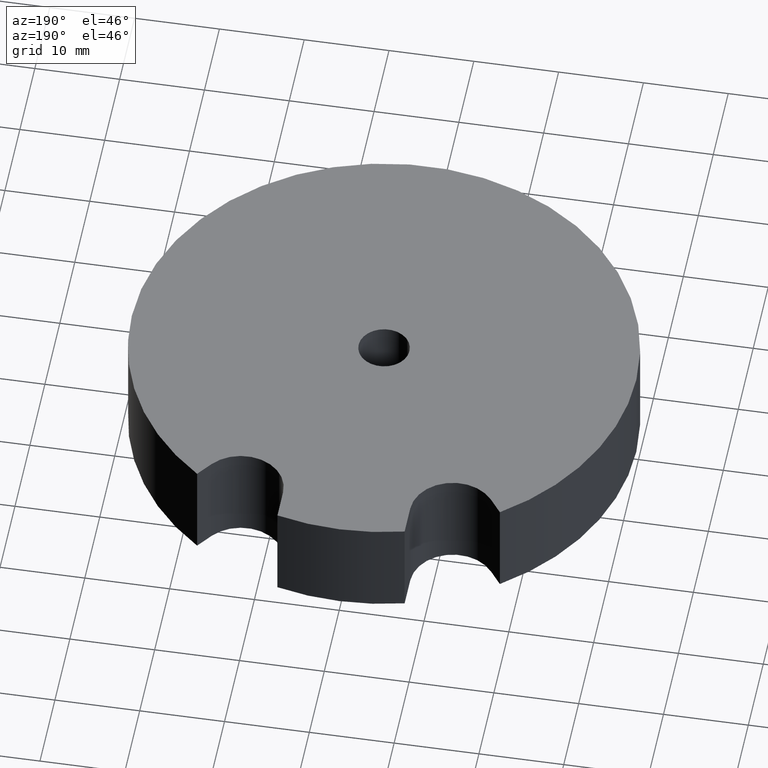
[diagram: clean part render]
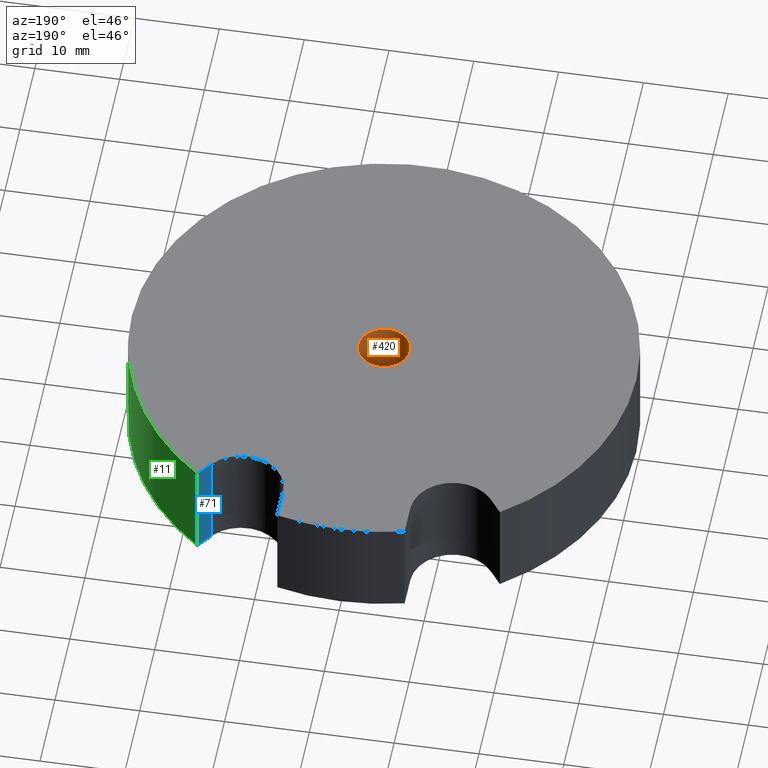
[diagram: same view with three faces highlighted in distinct colors, each labeled with its STEP entity id]
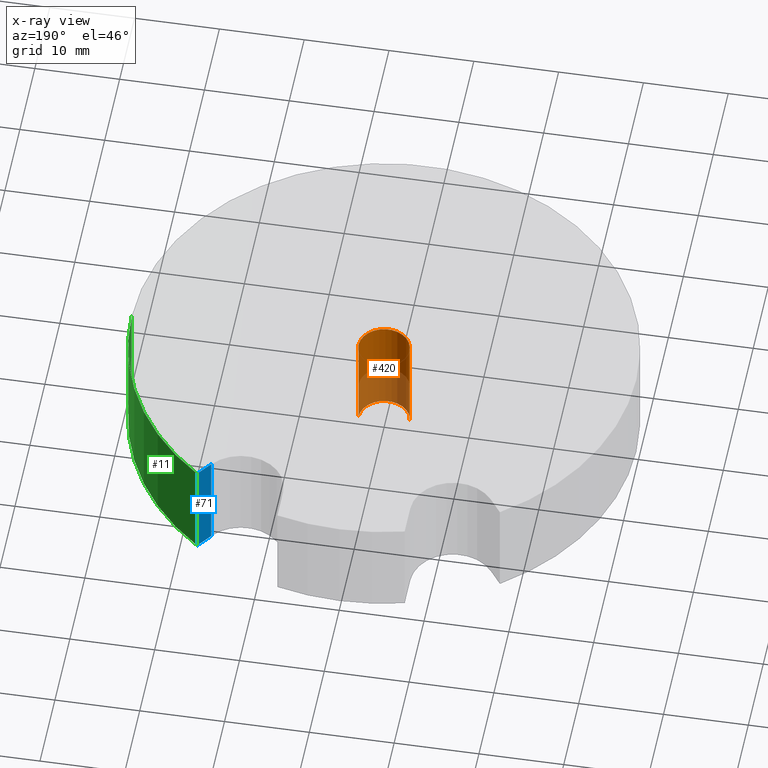
[diagram: x-ray of the same camera — body ghosted, the three highlighted faces saturated]
A machine part, auxiliary view with three faces highlighted in distinct colors.
The next image is the same camera in x-ray (body ghosted, the three faces saturated) — at least one of them is partly hidden behind the body in this view.
Their STEP definitions:

[orange] entity #420 — the highlighted cylindrical surface (edge-blend (fillet) strip) has radius 3 mm, axis along (-0, -0, -1).
#15 = CARTESIAN_POINT ( 'NONE',  ( -3.000000000000000400, 0.0000000000000000000, -6.000000000000000000 ) ) ;
#20 = DIRECTION ( 'NONE',  ( -1.000000000000000000, 0.0000000000000000000, 0.0000000000000000000 ) ) ;
#35 = CARTESIAN_POINT ( 'NONE',  ( -3.000000000000000400, 0.0000000000000000000, 6.000000000000000000 ) ) ;
#51 = CARTESIAN_POINT ( 'NONE',  ( 0.0000000000000000000, 0.0000000000000000000, 6.000000000000000000 ) ) ;
#55 = CARTESIAN_POINT ( 'NONE',  ( 3.000000000000000400, 3.673940397442060400E-016, 6.000000000000000000 ) ) ;
#66 = DIRECTION ( 'NONE',  ( -0.0000000000000000000, -0.0000000000000000000, -1.000000000000000000 ) ) ;
#105 = VECTOR ( 'NONE', #141, 1000.000000000000000 ) ;
#130 = CYLINDRICAL_SURFACE ( 'NONE', #234, 3.000000000000000400 ) ;
#136 = FACE_OUTER_BOUND ( 'NONE', #291, .T. ) ;
#141 = DIRECTION ( 'NONE',  ( -0.0000000000000000000, -0.0000000000000000000, -1.000000000000000000 ) ) ;
#147 = VECTOR ( 'NONE', #66, 1000.000000000000000 ) ;
#154 = DIRECTION ( 'NONE',  ( 1.000000000000000000, 0.0000000000000000000, 0.0000000000000000000 ) ) ;
#157 = LINE ( 'NONE', #55, #147 ) ;
#163 = CIRCLE ( 'NONE', #292, 3.000000000000000400 ) ;
#166 = CARTESIAN_POINT ( 'NONE',  ( 3.000000000000000400, 3.673940397442060400E-016, 6.000000000000000000 ) ) ;
#172 = CARTESIAN_POINT ( 'NONE',  ( 0.0000000000000000000, 0.0000000000000000000, -6.000000000000000000 ) ) ;
#177 = ORIENTED_EDGE ( 'NONE', *, *, #409, .T. ) ;
#184 = LINE ( 'NONE', #207, #105 ) ;
#185 = CIRCLE ( 'NONE', #266, 3.000000000000000400 ) ;
#207 = CARTESIAN_POINT ( 'NONE',  ( -3.000000000000000400, 0.0000000000000000000, 6.000000000000000000 ) ) ;
#234 = AXIS2_PLACEMENT_3D ( 'NONE', #410, #342, #20 ) ;
#246 = ORIENTED_EDGE ( 'NONE', *, *, #407, .T. ) ;
#260 = DIRECTION ( 'NONE',  ( 0.0000000000000000000, 0.0000000000000000000, 1.000000000000000000 ) ) ;
#266 = AXIS2_PLACEMENT_3D ( 'NONE', #172, #260, #448 ) ;
#287 = VERTEX_POINT ( 'NONE', #35 ) ;
#291 = EDGE_LOOP ( 'NONE', ( #246, #177, #463, #355 ) ) ;
#292 = AXIS2_PLACEMENT_3D ( 'NONE', #51, #385, #154 ) ;
#319 = VERTEX_POINT ( 'NONE', #15 ) ;
#320 = VERTEX_POINT ( 'NONE', #413 ) ;
#342 = DIRECTION ( 'NONE',  ( -0.0000000000000000000, -0.0000000000000000000, -1.000000000000000000 ) ) ;
#355 = ORIENTED_EDGE ( 'NONE', *, *, #395, .F. ) ;
#385 = DIRECTION ( 'NONE',  ( 0.0000000000000000000, 0.0000000000000000000, 1.000000000000000000 ) ) ;
#395 = EDGE_CURVE ( 'NONE', #287, #319, #184, .T. ) ;
#396 = EDGE_CURVE ( 'NONE', #319, #320, #185, .T. ) ;
#407 = EDGE_CURVE ( 'NONE', #287, #485, #163, .T. ) ;
#409 = EDGE_CURVE ( 'NONE', #485, #320, #157, .T. ) ;
#410 = CARTESIAN_POINT ( 'NONE',  ( 0.0000000000000000000, 0.0000000000000000000, 6.000000000000000000 ) ) ;
#413 = CARTESIAN_POINT ( 'NONE',  ( 3.000000000000000400, 3.673940397442060400E-016, -6.000000000000000000 ) ) ;
#420 = ADVANCED_FACE ( 'NONE', ( #136 ), #130, .F. ) ;
#448 = DIRECTION ( 'NONE',  ( 1.000000000000000000, 0.0000000000000000000, 0.0000000000000000000 ) ) ;
#463 = ORIENTED_EDGE ( 'NONE', *, *, #396, .F. ) ;
#485 = VERTEX_POINT ( 'NONE', #166 ) ;

[blue] entity #71 — the highlighted planar face has unit normal (0.8, -0.6, 0).
#16 = PLANE ( 'NONE',  #357 ) ;
#21 = CARTESIAN_POINT ( 'NONE',  ( 16.50000000000000000, 22.00000000000000700, 6.000000000000000000 ) ) ;
#24 = CARTESIAN_POINT ( 'NONE',  ( 16.50000000000000000, 22.00000000000000700, -6.000000000000000000 ) ) ;
#40 = CARTESIAN_POINT ( 'NONE',  ( 16.50000000000000000, 22.00000000000000700, 6.000000000000000000 ) ) ;
#42 = CARTESIAN_POINT ( 'NONE',  ( 17.84999999999999800, 23.80000000000000400, 6.000000000000000000 ) ) ;
#45 = FACE_OUTER_BOUND ( 'NONE', #280, .T. ) ;
#47 = VECTOR ( 'NONE', #200, 1000.000000000000000 ) ;
#53 = CARTESIAN_POINT ( 'NONE',  ( 17.84999999999999800, 23.80000000000000400, -6.000000000000000000 ) ) ;
#71 = ADVANCED_FACE ( 'NONE', ( #45 ), #16, .F. ) ;
#75 = EDGE_CURVE ( 'NONE', #293, #295, #224, .T. ) ;
#95 = EDGE_CURVE ( 'NONE', #330, #295, #223, .T. ) ;
#98 = VECTOR ( 'NONE', #383, 1000.000000000000000 ) ;
#100 = LINE ( 'NONE', #281, #98 ) ;
#123 = VECTOR ( 'NONE', #240, 1000.000000000000000 ) ;
#124 = LINE ( 'NONE', #476, #123 ) ;
#161 = DIRECTION ( 'NONE',  ( -0.0000000000000000000, -0.0000000000000000000, -1.000000000000000000 ) ) ;
#200 = DIRECTION ( 'NONE',  ( -0.6000000000000002000, -0.7999999999999998200, 0.0000000000000000000 ) ) ;
#223 = LINE ( 'NONE', #400, #47 ) ;
#224 = LINE ( 'NONE', #40, #228 ) ;
#228 = VECTOR ( 'NONE', #161, 1000.000000000000000 ) ;
#239 = CARTESIAN_POINT ( 'NONE',  ( 17.84999999999999800, 23.80000000000000400, 6.000000000000000000 ) ) ;
#240 = DIRECTION ( 'NONE',  ( -0.0000000000000000000, -0.0000000000000000000, -1.000000000000000000 ) ) ;
#268 = ORIENTED_EDGE ( 'NONE', *, *, #95, .T. ) ;
#275 = VERTEX_POINT ( 'NONE', #239 ) ;
#280 = EDGE_LOOP ( 'NONE', ( #268, #298, #455, #423 ) ) ;
#281 = CARTESIAN_POINT ( 'NONE',  ( 17.84999999999999800, 23.80000000000000400, 6.000000000000000000 ) ) ;
#293 = VERTEX_POINT ( 'NONE', #21 ) ;
#295 = VERTEX_POINT ( 'NONE', #24 ) ;
#298 = ORIENTED_EDGE ( 'NONE', *, *, #75, .F. ) ;
#330 = VERTEX_POINT ( 'NONE', #53 ) ;
#357 = AXIS2_PLACEMENT_3D ( 'NONE', #42, #381, #483 ) ;
#381 = DIRECTION ( 'NONE',  ( 0.7999999999999998200, -0.6000000000000003100, 0.0000000000000000000 ) ) ;
#383 = DIRECTION ( 'NONE',  ( -0.6000000000000002000, -0.7999999999999998200, 0.0000000000000000000 ) ) ;
#400 = CARTESIAN_POINT ( 'NONE',  ( 17.84999999999999800, 23.80000000000000400, -6.000000000000000000 ) ) ;
#423 = ORIENTED_EDGE ( 'NONE', *, *, #429, .T. ) ;
#429 = EDGE_CURVE ( 'NONE', #275, #330, #124, .T. ) ;
#455 = ORIENTED_EDGE ( 'NONE', *, *, #462, .F. ) ;
#462 = EDGE_CURVE ( 'NONE', #275, #293, #100, .T. ) ;
#476 = CARTESIAN_POINT ( 'NONE',  ( 17.84999999999999800, 23.80000000000000400, 6.000000000000000000 ) ) ;
#483 = DIRECTION ( 'NONE',  ( 0.6000000000000003100, 0.7999999999999998200, 0.0000000000000000000 ) ) ;

[green] entity #11 — the highlighted cylindrical surface (partial cylindrical patch) has radius 29.75 mm, axis along (-0, -0, -1).
#11 = ADVANCED_FACE ( 'NONE', ( #318 ), #233, .T. ) ;
#34 = CARTESIAN_POINT ( 'NONE',  ( 29.75000000000000400, 3.643324227463376200E-015, 6.000000000000000000 ) ) ;
#53 = CARTESIAN_POINT ( 'NONE',  ( 17.84999999999999800, 23.80000000000000400, -6.000000000000000000 ) ) ;
#60 = DIRECTION ( 'NONE',  ( 0.0000000000000000000, 0.0000000000000000000, 1.000000000000000000 ) ) ;
#92 = CARTESIAN_POINT ( 'NONE',  ( 0.0000000000000000000, 0.0000000000000000000, -6.000000000000000000 ) ) ;
#123 = VECTOR ( 'NONE', #240, 1000.000000000000000 ) ;
#124 = LINE ( 'NONE', #476, #123 ) ;
#129 = CIRCLE ( 'NONE', #237, 29.75000000000000400 ) ;
#132 = LINE ( 'NONE', #34, #138 ) ;
#133 = DIRECTION ( 'NONE',  ( -0.0000000000000000000, -0.0000000000000000000, -1.000000000000000000 ) ) ;
#138 = VECTOR ( 'NONE', #162, 1000.000000000000000 ) ;
#155 = CIRCLE ( 'NONE', #245, 29.75000000000000400 ) ;
#162 = DIRECTION ( 'NONE',  ( -0.0000000000000000000, -0.0000000000000000000, -1.000000000000000000 ) ) ;
#191 = CARTESIAN_POINT ( 'NONE',  ( 0.0000000000000000000, 0.0000000000000000000, 6.000000000000000000 ) ) ;
#195 = CARTESIAN_POINT ( 'NONE',  ( 0.0000000000000000000, 0.0000000000000000000, 6.000000000000000000 ) ) ;
#233 = CYLINDRICAL_SURFACE ( 'NONE', #380, 29.75000000000000400 ) ;
#237 = AXIS2_PLACEMENT_3D ( 'NONE', #92, #352, #368 ) ;
#239 = CARTESIAN_POINT ( 'NONE',  ( 17.84999999999999800, 23.80000000000000400, 6.000000000000000000 ) ) ;
#240 = DIRECTION ( 'NONE',  ( -0.0000000000000000000, -0.0000000000000000000, -1.000000000000000000 ) ) ;
#245 = AXIS2_PLACEMENT_3D ( 'NONE', #191, #60, #449 ) ;
#275 = VERTEX_POINT ( 'NONE', #239 ) ;
#282 = VERTEX_POINT ( 'NONE', #310 ) ;
#305 = ORIENTED_EDGE ( 'NONE', *, *, #429, .F. ) ;
#310 = CARTESIAN_POINT ( 'NONE',  ( 29.75000000000000400, 3.643324227463376200E-015, -6.000000000000000000 ) ) ;
#312 = ORIENTED_EDGE ( 'NONE', *, *, #418, .F. ) ;
#318 = FACE_OUTER_BOUND ( 'NONE', #437, .T. ) ;
#330 = VERTEX_POINT ( 'NONE', #53 ) ;
#352 = DIRECTION ( 'NONE',  ( 0.0000000000000000000, 0.0000000000000000000, 1.000000000000000000 ) ) ;
#353 = VERTEX_POINT ( 'NONE', #391 ) ;
#368 = DIRECTION ( 'NONE',  ( 1.000000000000000000, 0.0000000000000000000, 0.0000000000000000000 ) ) ;
#380 = AXIS2_PLACEMENT_3D ( 'NONE', #195, #133, #382 ) ;
#382 = DIRECTION ( 'NONE',  ( -1.000000000000000000, 0.0000000000000000000, 0.0000000000000000000 ) ) ;
#391 = CARTESIAN_POINT ( 'NONE',  ( 29.75000000000000400, 3.643324227463376200E-015, 6.000000000000000000 ) ) ;
#401 = ORIENTED_EDGE ( 'NONE', *, *, #424, .T. ) ;
#405 = ORIENTED_EDGE ( 'NONE', *, *, #428, .T. ) ;
#418 = EDGE_CURVE ( 'NONE', #353, #275, #155, .T. ) ;
#424 = EDGE_CURVE ( 'NONE', #353, #282, #132, .T. ) ;
#428 = EDGE_CURVE ( 'NONE', #282, #330, #129, .T. ) ;
#429 = EDGE_CURVE ( 'NONE', #275, #330, #124, .T. ) ;
#437 = EDGE_LOOP ( 'NONE', ( #312, #401, #405, #305 ) ) ;
#449 = DIRECTION ( 'NONE',  ( 1.000000000000000000, 0.0000000000000000000, 0.0000000000000000000 ) ) ;
#476 = CARTESIAN_POINT ( 'NONE',  ( 17.84999999999999800, 23.80000000000000400, 6.000000000000000000 ) ) ;